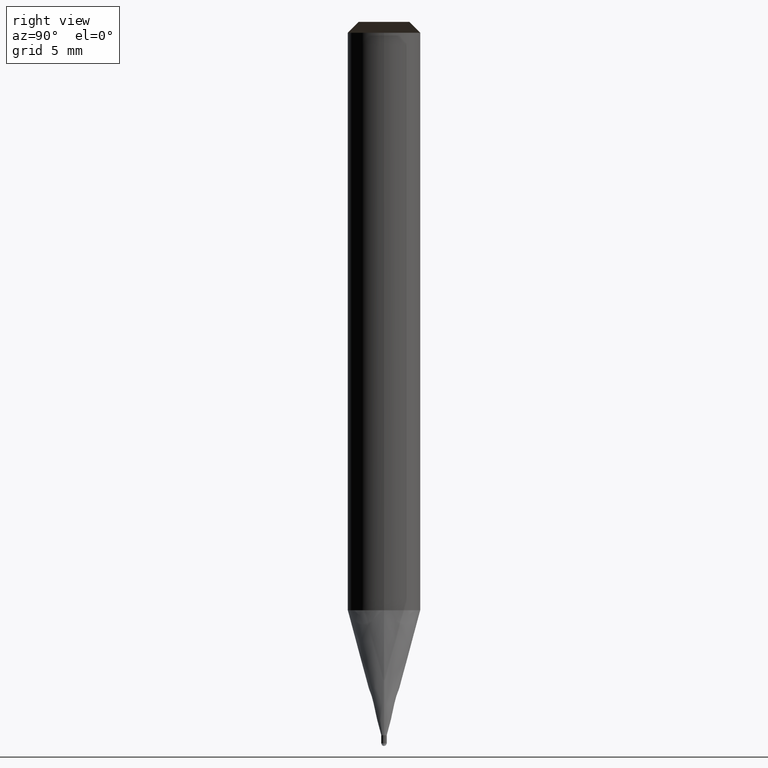
[diagram: clean part render]
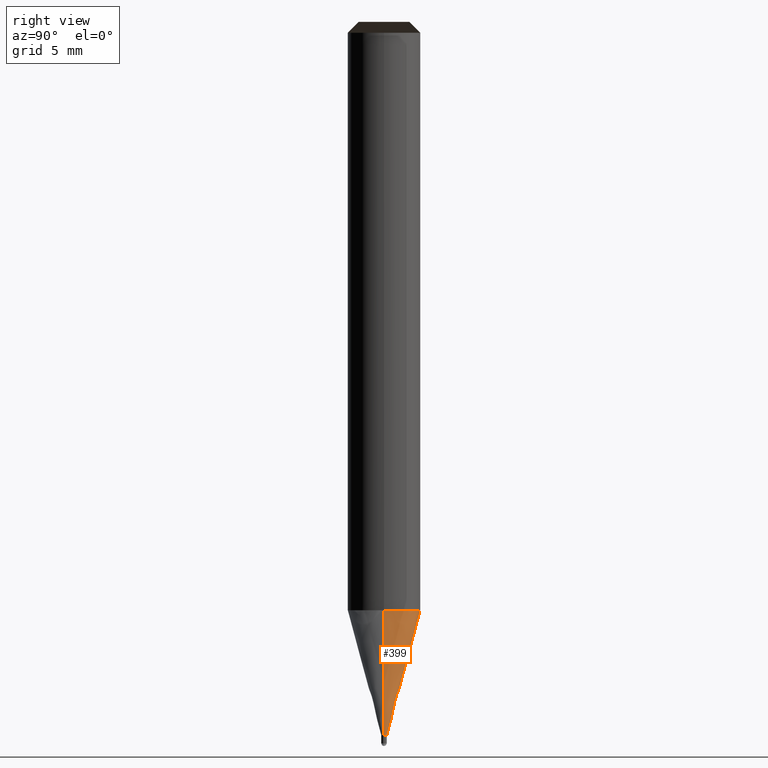
[diagram: same view with one face highlighted and labeled with its STEP entity id]
A machine part, right view. The second image highlights one B-rep face of the part: STEP entity #399.
In plain terms, the highlighted face is a freeform B-spline surface patch.
Its self-contained STEP definition (entity closure, byte-faithful):
#198=CARTESIAN_POINT('',(0.15,0.0,-6.904293994002));
#199=CARTESIAN_POINT('',(0.15,0.15,-6.904293994002));
#200=CARTESIAN_POINT('',(0.0,0.15,-6.904293994002));
#201=CARTESIAN_POINT('',(-0.15,0.15,-6.904293994002));
#202=CARTESIAN_POINT('',(-0.15,0.0,-6.904293994002));
#203=CARTESIAN_POINT('',(2.0,0.0,-0.0));
#204=CARTESIAN_POINT('',(2.0,2.0,-0.0));
#205=CARTESIAN_POINT('',(0.0,2.0,-0.0));
#206=CARTESIAN_POINT('',(-2.0,2.0,-0.0));
#207=CARTESIAN_POINT('',(-2.0,0.0,-0.0));
#380=(
BOUNDED_SURFACE()
B_SPLINE_SURFACE(1,2,(
(#198,#199,#200,#201,#202),
(#203,#204,#205,#206,#207)
), .UNSPECIFIED.,.F.,.F.,.F.)
B_SPLINE_SURFACE_WITH_KNOTS((2,2),(3,2,3),(
0.0,1.0),(
0.0,0.5,1.0), .UNSPECIFIED.)
GEOMETRIC_REPRESENTATION_ITEM()
RATIONAL_B_SPLINE_SURFACE(((1.0,0.707106781187,1.0,0.707106781187,1.0),
(1.0,0.707106781187,1.0,0.707106781187,1.0)
))
REPRESENTATION_ITEM('')
SURFACE()
);
#381=(
BOUNDED_CURVE()
B_SPLINE_CURVE(2,(#203,#204,#205,#206,#207),.UNSPECIFIED.,.F.,.F.)
B_SPLINE_CURVE_WITH_KNOTS((3,2,3),
(0.0,0.5,1.0),.UNSPECIFIED.)
CURVE()
GEOMETRIC_REPRESENTATION_ITEM()
RATIONAL_B_SPLINE_CURVE((1.0,0.707106781187,1.0,0.707106781187,1.0))
REPRESENTATION_ITEM('')
);
#382=(
BOUNDED_CURVE()
B_SPLINE_CURVE(1,(#207,#202),.UNSPECIFIED.,.F.,.F.)
B_SPLINE_CURVE_WITH_KNOTS((2,2),
(0.0,1.0),.UNSPECIFIED.)
CURVE()
GEOMETRIC_REPRESENTATION_ITEM()
RATIONAL_B_SPLINE_CURVE((1.0,1.0))
REPRESENTATION_ITEM('')
);
#383=(
BOUNDED_CURVE()
B_SPLINE_CURVE(2,(#202,#201,#200,#199,#198),.UNSPECIFIED.,.F.,.F.)
B_SPLINE_CURVE_WITH_KNOTS((3,2,3),
(0.0,0.5,1.0),.UNSPECIFIED.)
CURVE()
GEOMETRIC_REPRESENTATION_ITEM()
RATIONAL_B_SPLINE_CURVE((1.0,0.707106781187,1.0,0.707106781187,1.0))
REPRESENTATION_ITEM('')
);
#384=(
BOUNDED_CURVE()
B_SPLINE_CURVE(1,(#198,#203),.UNSPECIFIED.,.F.,.F.)
B_SPLINE_CURVE_WITH_KNOTS((2,2),
(0.0,1.0),.UNSPECIFIED.)
CURVE()
GEOMETRIC_REPRESENTATION_ITEM()
RATIONAL_B_SPLINE_CURVE((1.0,1.0))
REPRESENTATION_ITEM('')
);
#385=VERTEX_POINT('',#198);
#386=VERTEX_POINT('',#202);
#387=VERTEX_POINT('',#203);
#388=VERTEX_POINT('',#207);
#389=EDGE_CURVE('',#387,#388,#381,.T.);
#390=EDGE_CURVE('',#388,#386,#382,.T.);
#391=EDGE_CURVE('',#386,#385,#383,.T.);
#392=EDGE_CURVE('',#385,#387,#384,.T.);
#393=ORIENTED_EDGE('',*,*,#389,.T.);
#394=ORIENTED_EDGE('',*,*,#390,.T.);
#395=ORIENTED_EDGE('',*,*,#391,.T.);
#396=ORIENTED_EDGE('',*,*,#392,.T.);
#397=EDGE_LOOP('',(#393,#394,#395,#396));
#398=FACE_OUTER_BOUND('',#397,.T.);
#399=ADVANCED_FACE('',(#398),#380,.T.);